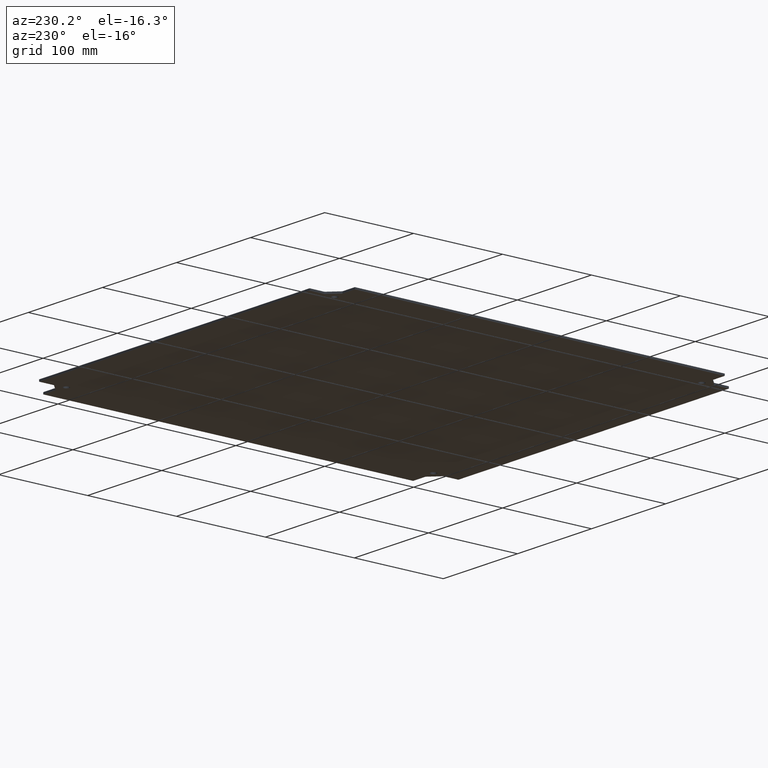
[diagram: clean part render]
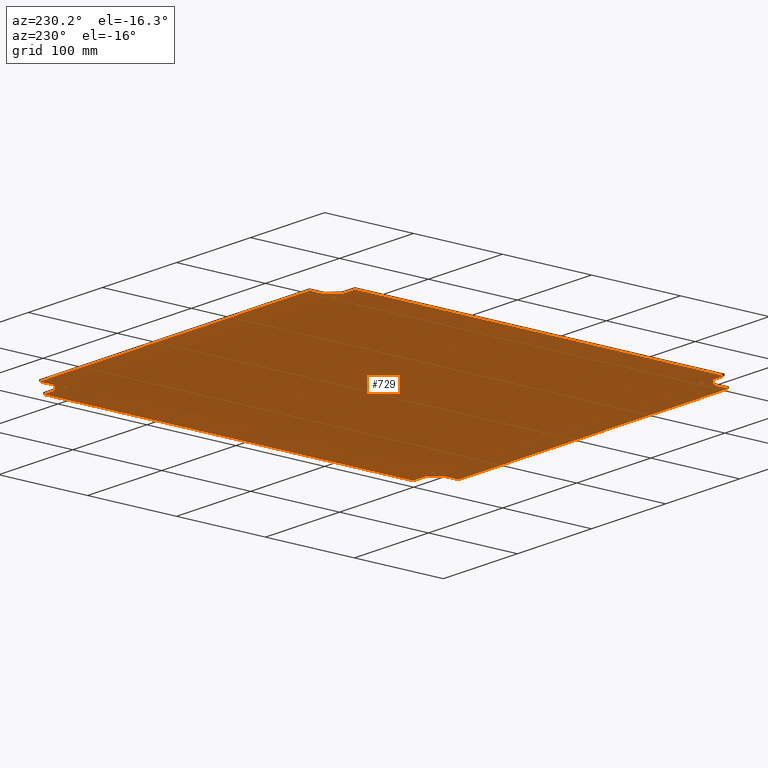
[diagram: same view with one face highlighted and labeled with its STEP entity id]
A machine part, auxiliary view. The second image highlights one B-rep face of the part: STEP entity #729.
In plain terms, the highlighted planar face has unit normal (0, 0, 1).
Its self-contained STEP definition (entity closure, byte-faithful):
#66=CARTESIAN_POINT('',(7.250000000000014,-8.124999999999986,0.0));
#67=VERTEX_POINT('',#66);
#68=CARTESIAN_POINT('',(7.125000000000014,-8.124999999999986,0.0));
#69=DIRECTION('',(0.0,0.0,1.0));
#70=DIRECTION('',(-1.0,0.0,0.0));
#71=AXIS2_PLACEMENT_3D('',#68,#69,#70);
#72=CIRCLE('',#71,0.125000000000000);
#73=EDGE_CURVE('',#67,#67,#72,.T.);
#94=CARTESIAN_POINT('',(7.249999999999976,8.125000000000020,0.0));
#95=VERTEX_POINT('',#94);
#96=CARTESIAN_POINT('',(7.124999999999977,8.125000000000020,0.0));
#97=DIRECTION('',(0.0,0.0,1.0));
#98=DIRECTION('',(-1.0,0.0,0.0));
#99=AXIS2_PLACEMENT_3D('',#96,#97,#98);
#100=CIRCLE('',#99,0.125000000000000);
#101=EDGE_CURVE('',#95,#95,#100,.T.);
#122=CARTESIAN_POINT('',(-6.999999999999981,-8.125000000000018,0.0));
#123=VERTEX_POINT('',#122);
#124=CARTESIAN_POINT('',(-7.124999999999981,-8.125000000000018,0.0));
#125=DIRECTION('',(0.0,0.0,1.0));
#126=DIRECTION('',(-1.0,0.0,0.0));
#127=AXIS2_PLACEMENT_3D('',#124,#125,#126);
#128=CIRCLE('',#127,0.125000000000000);
#129=EDGE_CURVE('',#123,#123,#128,.T.);
#150=CARTESIAN_POINT('',(-7.000000000000019,8.124999999999984,0.0));
#151=VERTEX_POINT('',#150);
#152=CARTESIAN_POINT('',(-7.125000000000019,8.124999999999984,0.0));
#153=DIRECTION('',(0.0,0.0,1.0));
#154=DIRECTION('',(-1.0,0.0,0.0));
#155=AXIS2_PLACEMENT_3D('',#152,#153,#154);
#156=CIRCLE('',#155,0.125000000000000);
#157=EDGE_CURVE('',#151,#151,#156,.T.);
#177=CARTESIAN_POINT('',(7.187149999999985,8.623950000000015,0.0));
#178=VERTEX_POINT('',#177);
#185=CARTESIAN_POINT('',(7.187149999999984,9.281250000000014,0.0));
#186=VERTEX_POINT('',#185);
#187=CARTESIAN_POINT('',(7.187149999999984,9.281250000000014,0.0));
#188=DIRECTION('',(0.0,-1.0,0.0));
#189=VECTOR('',#188,0.657299999999999);
#190=LINE('',#187,#189);
#191=EDGE_CURVE('',#186,#178,#190,.T.);
#215=CARTESIAN_POINT('',(7.623949999999986,8.187150000000019,0.0));
#216=VERTEX_POINT('',#215);
#223=CARTESIAN_POINT('',(7.187149999999985,8.623950000000015,0.0));
#224=DIRECTION('',(0.707106781186551,-0.707106781186544,0.0));
#225=VECTOR('',#224,0.617728484044566);
#226=LINE('',#223,#225);
#227=EDGE_CURVE('',#178,#216,#226,.T.);
#246=CARTESIAN_POINT('',(8.281249999999984,8.187150000000022,0.0));
#247=VERTEX_POINT('',#246);
#254=CARTESIAN_POINT('',(7.623949999999986,8.187150000000019,0.0));
#255=DIRECTION('',(1.0,0.0,0.0));
#256=VECTOR('',#255,0.657299999999998);
#257=LINE('',#254,#256);
#258=EDGE_CURVE('',#216,#247,#257,.T.);
#277=CARTESIAN_POINT('',(8.281250000000021,-8.187149999999983,0.0));
#278=VERTEX_POINT('',#277);
#285=CARTESIAN_POINT('',(8.281249999999984,8.187150000000022,0.0));
#286=DIRECTION('',(0.0,-1.0,0.0));
#287=VECTOR('',#286,16.374300000000005);
#288=LINE('',#285,#287);
#289=EDGE_CURVE('',#247,#278,#288,.T.);
#308=CARTESIAN_POINT('',(7.623950000000023,-8.187149999999985,0.0));
#309=VERTEX_POINT('',#308);
#316=CARTESIAN_POINT('',(8.281250000000021,-8.187149999999983,0.0));
#317=DIRECTION('',(-1.0,0.0,0.0));
#318=VECTOR('',#317,0.657299999999998);
#319=LINE('',#316,#318);
#320=EDGE_CURVE('',#278,#309,#319,.T.);
#339=CARTESIAN_POINT('',(7.187150000000026,-8.623949999999981,0.0));
#340=VERTEX_POINT('',#339);
#347=CARTESIAN_POINT('',(7.623950000000023,-8.187149999999985,0.0));
#348=DIRECTION('',(-0.707106781186548,-0.707106781186547,0.0));
#349=VECTOR('',#348,0.617728484044563);
#350=LINE('',#347,#349);
#351=EDGE_CURVE('',#309,#340,#350,.T.);
#370=CARTESIAN_POINT('',(7.187150000000028,-9.281249999999981,0.0));
#371=VERTEX_POINT('',#370);
#378=CARTESIAN_POINT('',(7.187150000000026,-8.623949999999981,0.0));
#379=DIRECTION('',(0.0,-1.0,0.0));
#380=VECTOR('',#379,0.657299999999999);
#381=LINE('',#378,#380);
#382=EDGE_CURVE('',#340,#371,#381,.T.);
#401=CARTESIAN_POINT('',(-7.187149999999982,-9.281250000000018,0.0));
#402=VERTEX_POINT('',#401);
#409=CARTESIAN_POINT('',(7.187150000000028,-9.281249999999981,0.0));
#410=DIRECTION('',(-1.0,0.0,0.0));
#411=VECTOR('',#410,14.374300000000009);
#412=LINE('',#409,#411);
#413=EDGE_CURVE('',#371,#402,#412,.T.);
#432=CARTESIAN_POINT('',(-7.187149999999984,-8.623950000000017,0.0));
#433=VERTEX_POINT('',#432);
#440=CARTESIAN_POINT('',(-7.187149999999982,-9.281250000000018,0.0));
#441=DIRECTION('',(0.0,1.0,0.0));
#442=VECTOR('',#441,0.657300000000001);
#443=LINE('',#440,#442);
#444=EDGE_CURVE('',#402,#433,#443,.T.);
#463=CARTESIAN_POINT('',(-7.623949999999988,-8.187150000000015,0.0));
#464=VERTEX_POINT('',#463);
#471=CARTESIAN_POINT('',(-7.187149999999984,-8.623950000000017,0.0));
#472=DIRECTION('',(-0.707106781186550,0.707106781186545,0.0));
#473=VECTOR('',#472,0.617728484044572);
#474=LINE('',#471,#473);
#475=EDGE_CURVE('',#433,#464,#474,.T.);
#494=CARTESIAN_POINT('',(-8.281249999999984,-8.187150000000019,0.0));
#495=VERTEX_POINT('',#494);
#502=CARTESIAN_POINT('',(-7.623949999999988,-8.187150000000015,0.0));
#503=DIRECTION('',(-1.0,0.0,0.0));
#504=VECTOR('',#503,0.657299999999996);
#505=LINE('',#502,#504);
#506=EDGE_CURVE('',#464,#495,#505,.T.);
#525=CARTESIAN_POINT('',(-8.281250000000021,8.187149999999983,0.0));
#526=VERTEX_POINT('',#525);
#533=CARTESIAN_POINT('',(-8.281249999999984,-8.187150000000019,0.0));
#534=DIRECTION('',(0.0,1.0,0.0));
#535=VECTOR('',#534,16.374300000000002);
#536=LINE('',#533,#535);
#537=EDGE_CURVE('',#495,#526,#536,.T.);
#556=CARTESIAN_POINT('',(-7.623950000000022,8.187149999999985,0.0));
#557=VERTEX_POINT('',#556);
#564=CARTESIAN_POINT('',(-8.281250000000021,8.187149999999983,0.0));
#565=DIRECTION('',(1.0,0.0,0.0));
#566=VECTOR('',#565,0.657299999999999);
#567=LINE('',#564,#566);
#568=EDGE_CURVE('',#526,#557,#567,.T.);
#587=CARTESIAN_POINT('',(-7.187150000000025,8.623949999999983,0.0));
#588=VERTEX_POINT('',#587);
#595=CARTESIAN_POINT('',(-7.623950000000022,8.187149999999985,0.0));
#596=DIRECTION('',(0.707106781186547,0.707106781186548,0.0));
#597=VECTOR('',#596,0.617728484044565);
#598=LINE('',#595,#597);
#599=EDGE_CURVE('',#557,#588,#598,.T.);
#618=CARTESIAN_POINT('',(-7.187150000000026,9.281249999999984,0.0));
#619=VERTEX_POINT('',#618);
#626=CARTESIAN_POINT('',(-7.187150000000025,8.623949999999983,0.0));
#627=DIRECTION('',(0.0,1.0,0.0));
#628=VECTOR('',#627,0.657300000000001);
#629=LINE('',#626,#628);
#630=EDGE_CURVE('',#588,#619,#629,.T.);
#648=CARTESIAN_POINT('',(-7.187150000000026,9.281249999999984,0.0));
#649=DIRECTION('',(1.0,0.0,0.0));
#650=VECTOR('',#649,14.374300000000009);
#651=LINE('',#648,#650);
#652=EDGE_CURVE('',#619,#186,#651,.T.);
#694=CARTESIAN_POINT('',(3.824587E-016,6.884257E-016,0.0));
#695=DIRECTION('',(0.0,0.0,1.0));
#696=DIRECTION('',(1.0,0.0,0.0));
#697=AXIS2_PLACEMENT_3D('',#694,#695,#696);
#698=PLANE('',#697);
#699=ORIENTED_EDGE('',*,*,#652,.T.);
#700=ORIENTED_EDGE('',*,*,#191,.T.);
#701=ORIENTED_EDGE('',*,*,#227,.T.);
#702=ORIENTED_EDGE('',*,*,#258,.T.);
#703=ORIENTED_EDGE('',*,*,#289,.T.);
#704=ORIENTED_EDGE('',*,*,#320,.T.);
#705=ORIENTED_EDGE('',*,*,#351,.T.);
#706=ORIENTED_EDGE('',*,*,#382,.T.);
#707=ORIENTED_EDGE('',*,*,#413,.T.);
#708=ORIENTED_EDGE('',*,*,#444,.T.);
#709=ORIENTED_EDGE('',*,*,#475,.T.);
#710=ORIENTED_EDGE('',*,*,#506,.T.);
#711=ORIENTED_EDGE('',*,*,#537,.T.);
#712=ORIENTED_EDGE('',*,*,#568,.T.);
#713=ORIENTED_EDGE('',*,*,#599,.T.);
#714=ORIENTED_EDGE('',*,*,#630,.T.);
#715=EDGE_LOOP('',(#699,#700,#701,#702,#703,#704,#705,#706,#707,#708,#709,#710,#711,#712,#713,#714));
#716=FACE_OUTER_BOUND('',#715,.T.);
#717=ORIENTED_EDGE('',*,*,#73,.T.);
#718=EDGE_LOOP('',(#717));
#719=FACE_BOUND('',#718,.T.);
#720=ORIENTED_EDGE('',*,*,#101,.T.);
#721=EDGE_LOOP('',(#720));
#722=FACE_BOUND('',#721,.T.);
#723=ORIENTED_EDGE('',*,*,#129,.T.);
#724=EDGE_LOOP('',(#723));
#725=FACE_BOUND('',#724,.T.);
#726=ORIENTED_EDGE('',*,*,#157,.T.);
#727=EDGE_LOOP('',(#726));
#728=FACE_BOUND('',#727,.T.);
#729=ADVANCED_FACE('',(#716,#719,#722,#725,#728),#698,.F.);